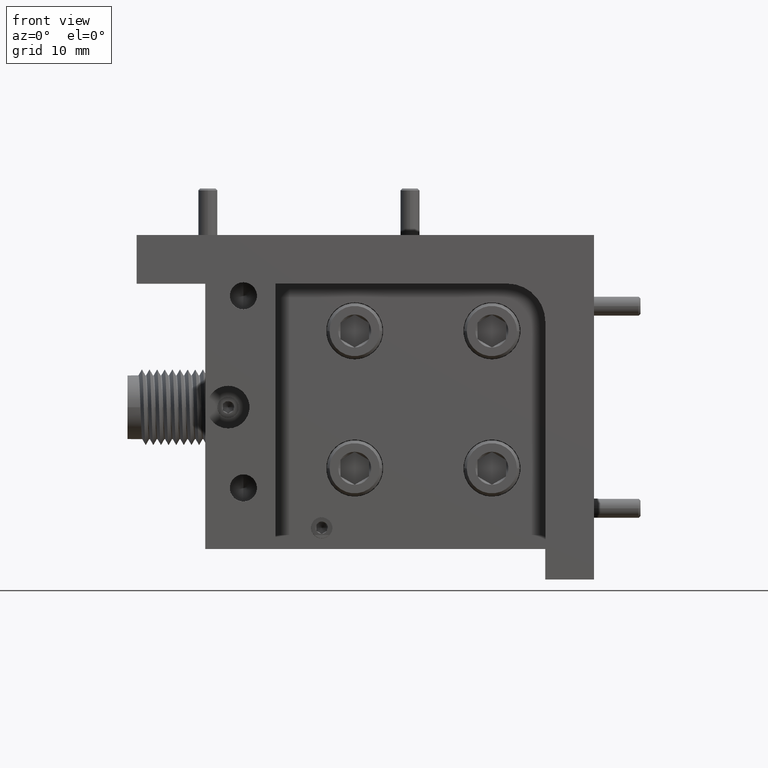
[diagram: clean part render]
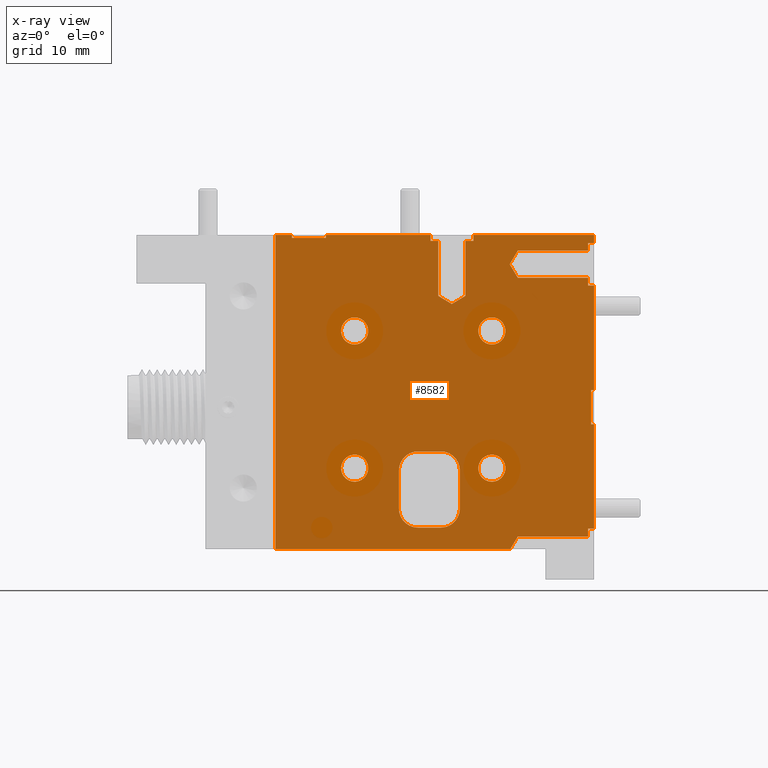
[diagram: x-ray — body ghosted, one internal face saturated and labeled with its STEP entity id]
A machine part, front view, then the same camera in x-ray: the body is ghosted and one INTERNAL B-rep face — a face not visible from any outside direction — is saturated and labeled: STEP entity #8582.
In plain terms, the highlighted planar face has unit normal (0, 1, -0).
Its self-contained STEP definition (entity closure, byte-faithful):
#28 = ORIENTED_EDGE ( 'NONE', *, *, #25538, .T. ) ;
#56 = EDGE_CURVE ( 'NONE', #23834, #22377, #21743, .T. ) ;
#151 = CARTESIAN_POINT ( 'NONE',  ( 0.7299999999999995400, 0.5649999999999999500, 0.5650000000000001700 ) ) ;
#199 = EDGE_CURVE ( 'NONE', #29773, #23316, #7146, .T. ) ;
#209 = EDGE_CURVE ( 'NONE', #19739, #19826, #17882, .T. ) ;
#213 = CARTESIAN_POINT ( 'NONE',  ( 0.7499999999999998900, 0.5649999999999999500, 0.5650000000000001700 ) ) ;
#232 = VERTEX_POINT ( 'NONE', #19087 ) ;
#254 = DIRECTION ( 'NONE',  ( -0.0000000000000000000, -1.000000000000000000, -0.0000000000000000000 ) ) ;
#397 = DIRECTION ( 'NONE',  ( 0.0000000000000000000, 0.0000000000000000000, -1.000000000000000000 ) ) ;
#596 = VECTOR ( 'NONE', #22093, 39.37007874015748100 ) ;
#700 = EDGE_CURVE ( 'NONE', #8427, #2411, #13617, .T. ) ;
#728 = CARTESIAN_POINT ( 'NONE',  ( 0.7299999999999995400, 0.5649999999999999500, 0.5387499999999997300 ) ) ;
#838 = VECTOR ( 'NONE', #3100, 39.37007874015748100 ) ;
#846 = CARTESIAN_POINT ( 'NONE',  ( 0.7499999999999998900, 0.5649999999999999500, 0.5650000000000001700 ) ) ;
#930 = LINE ( 'NONE', #29572, #28134 ) ;
#1063 = EDGE_LOOP ( 'NONE', ( #27345, #27094, #24034, #25707, #4909, #29517, #12427, #15848 ) ) ;
#1151 = ORIENTED_EDGE ( 'NONE', *, *, #14973, .F. ) ;
#1405 = CARTESIAN_POINT ( 'NONE',  ( -0.03500000000000012800, 0.5649999999999999500, 0.2944999999999999800 ) ) ;
#1422 = ORIENTED_EDGE ( 'NONE', *, *, #3636, .F. ) ;
#1443 = ORIENTED_EDGE ( 'NONE', *, *, #26437, .T. ) ;
#1518 = ORIENTED_EDGE ( 'NONE', *, *, #7972, .T. ) ;
#1781 = DIRECTION ( 'NONE',  ( 0.0000000000000000000, 0.0000000000000000000, -1.000000000000000000 ) ) ;
#1909 = CIRCLE ( 'NONE', #16889, 0.06250000000000005600 ) ;
#2118 = EDGE_LOOP ( 'NONE', ( #4166, #1422 ) ) ;
#2347 = VECTOR ( 'NONE', #12136, 39.37007874015748100 ) ;
#2411 = VERTEX_POINT ( 'NONE', #15401 ) ;
#2510 = DIRECTION ( 'NONE',  ( -1.000000000000000000, -0.0000000000000000000, 4.553079989440437700E-016 ) ) ;
#2630 = LINE ( 'NONE', #9233, #9558 ) ;
#2861 = ORIENTED_EDGE ( 'NONE', *, *, #22445, .T. ) ;
#2912 = CARTESIAN_POINT ( 'NONE',  ( -0.2410000000000006600, 0.5649999999999999500, 0.5650000000000001700 ) ) ;
#2981 = ORIENTED_EDGE ( 'NONE', *, *, #9999, .T. ) ;
#3023 = AXIS2_PLACEMENT_3D ( 'NONE', #10028, #254, #27025 ) ;
#3033 = ORIENTED_EDGE ( 'NONE', *, *, #14944, .F. ) ;
#3036 = CARTESIAN_POINT ( 'NONE',  ( 0.7299999999999995400, 0.5649999999999999500, 0.5387499999999997300 ) ) ;
#3069 = AXIS2_PLACEMENT_3D ( 'NONE', #18174, #3526, #23427 ) ;
#3100 = DIRECTION ( 'NONE',  ( 0.5150380749100550400, -3.366042420104637000E-017, 0.8571673007021117800 ) ) ;
#3165 = CARTESIAN_POINT ( 'NONE',  ( 0.7299999999999995400, 0.5649999999999999500, 0.5650000000000001700 ) ) ;
#3189 = CARTESIAN_POINT ( 'NONE',  ( 0.4755149297739927900, 0.5650000000000906500, -0.4649999999999999100 ) ) ;
#3241 = LINE ( 'NONE', #27762, #7468 ) ;
#3345 = DIRECTION ( 'NONE',  ( 1.000000000000000000, -6.535521515943214400E-017, -1.960656454782963900E-016 ) ) ;
#3371 = EDGE_CURVE ( 'NONE', #23396, #23316, #3974, .T. ) ;
#3468 = VERTEX_POINT ( 'NONE', #30446 ) ;
#3526 = DIRECTION ( 'NONE',  ( -6.535521515943215600E-017, -1.000000000000000000, 0.0000000000000000000 ) ) ;
#3572 = CARTESIAN_POINT ( 'NONE',  ( 0.7299999999999995400, 0.5649999999999999500, 0.4242500000000000200 ) ) ;
#3626 = VERTEX_POINT ( 'NONE', #31308 ) ;
#3636 = EDGE_CURVE ( 'NONE', #30985, #30448, #31512, .T. ) ;
#3688 = CARTESIAN_POINT ( 'NONE',  ( 0.4149999999999999200, 0.5649999999999999500, -0.2444999999999991900 ) ) ;
#3794 = VERTEX_POINT ( 'NONE', #10229 ) ;
#3901 = CARTESIAN_POINT ( 'NONE',  ( 0.2137499999999992500, 0.5649999999999999500, 0.5450000000000000400 ) ) ;
#3939 = CIRCLE ( 'NONE', #19445, 0.04449999999999955400 ) ;
#3959 = LINE ( 'NONE', #25359, #838 ) ;
#3974 = LINE ( 'NONE', #27355, #17342 ) ;
#4080 = ORIENTED_EDGE ( 'NONE', *, *, #18994, .T. ) ;
#4166 = ORIENTED_EDGE ( 'NONE', *, *, #26761, .F. ) ;
#4291 = FACE_BOUND ( 'NONE', #21644, .T. ) ;
#4419 = DIRECTION ( 'NONE',  ( -0.0000000000000000000, -0.0000000000000000000, -1.000000000000000000 ) ) ;
#4421 = CARTESIAN_POINT ( 'NONE',  ( 0.4149999999999999200, 0.5649999999999999500, 0.2500000000000003900 ) ) ;
#4556 = DIRECTION ( 'NONE',  ( -0.0000000000000000000, -1.000000000000000000, -0.0000000000000000000 ) ) ;
#4593 = VERTEX_POINT ( 'NONE', #24397 ) ;
#4758 = EDGE_CURVE ( 'NONE', #28155, #13393, #21516, .T. ) ;
#4808 = VECTOR ( 'NONE', #5241, 39.37007874015748100 ) ;
#4861 = EDGE_CURVE ( 'NONE', #3468, #5995, #6966, .T. ) ;
#4909 = ORIENTED_EDGE ( 'NONE', *, *, #24611, .F. ) ;
#4967 = DIRECTION ( 'NONE',  ( 1.000000000000000000, -0.0000000000000000000, -0.0000000000000000000 ) ) ;
#5064 = DIRECTION ( 'NONE',  ( -6.535521515943215600E-017, -1.000000000000000000, 0.0000000000000000000 ) ) ;
#5065 = LINE ( 'NONE', #14509, #2347 ) ;
#5241 = DIRECTION ( 'NONE',  ( 0.0000000000000000000, -1.190270089391939500E-032, -1.000000000000000000 ) ) ;
#5242 = LINE ( 'NONE', #10524, #23978 ) ;
#5271 = EDGE_CURVE ( 'NONE', #29848, #20117, #13024, .T. ) ;
#5374 = DIRECTION ( 'NONE',  ( -0.0000000000000000000, -1.000000000000000000, -0.0000000000000000000 ) ) ;
#5376 = CIRCLE ( 'NONE', #8502, 0.06250000000000005600 ) ;
#5403 = LINE ( 'NONE', #5887, #30632 ) ;
#5490 = CARTESIAN_POINT ( 'NONE',  ( 0.2137499999999992500, 0.5649999999999999500, 0.5450000000000000400 ) ) ;
#5665 = VERTEX_POINT ( 'NONE', #11240 ) ;
#5739 = VECTOR ( 'NONE', #22078, 39.37007874015748100 ) ;
#5803 = DIRECTION ( 'NONE',  ( 1.000000000000000000, -6.535521515943214400E-017, -1.960656454782963900E-016 ) ) ;
#5817 = CARTESIAN_POINT ( 'NONE',  ( 0.3100000000000000000, 0.5649999999999999500, -0.2074999999999999100 ) ) ;
#5887 = CARTESIAN_POINT ( 'NONE',  ( 0.2837499999999994500, 0.5649999999999999500, 0.3382617024532735300 ) ) ;
#5995 = VERTEX_POINT ( 'NONE', #19944 ) ;
#6091 = LINE ( 'NONE', #213, #21402 ) ;
#6119 = CARTESIAN_POINT ( 'NONE',  ( 0.1724999999999999000, 0.5649999999999999500, -0.3949999999999999600 ) ) ;
#6124 = DIRECTION ( 'NONE',  ( -0.0000000000000000000, -0.0000000000000000000, 1.000000000000000000 ) ) ;
#6173 = DIRECTION ( 'NONE',  ( 1.000000000000000000, 0.0000000000000000000, 0.0000000000000000000 ) ) ;
#6206 = DIRECTION ( 'NONE',  ( -1.000000000000000000, 6.535521515943215600E-017, 0.0000000000000000000 ) ) ;
#6314 = CARTESIAN_POINT ( 'NONE',  ( 0.7499999999999998900, 0.5649999999999999500, 0.5650000000000001700 ) ) ;
#6437 = CARTESIAN_POINT ( 'NONE',  ( 0.1724999999999999000, 0.5649999999999999500, -0.1449999999999998800 ) ) ;
#6444 = CARTESIAN_POINT ( 'NONE',  ( 0.4149999999999999200, 0.5649999999999999500, -0.1999999999999996500 ) ) ;
#6868 = EDGE_CURVE ( 'NONE', #3468, #23256, #26356, .T. ) ;
#6966 = LINE ( 'NONE', #16420, #19220 ) ;
#6977 = VECTOR ( 'NONE', #9855, 39.37007874015748100 ) ;
#7143 = ORIENTED_EDGE ( 'NONE', *, *, #16340, .T. ) ;
#7146 = LINE ( 'NONE', #14028, #25931 ) ;
#7192 = ORIENTED_EDGE ( 'NONE', *, *, #5271, .F. ) ;
#7207 = LINE ( 'NONE', #29059, #16746 ) ;
#7317 = ORIENTED_EDGE ( 'NONE', *, *, #26287, .F. ) ;
#7468 = VECTOR ( 'NONE', #8296, 39.37007874015748100 ) ;
#7694 = VECTOR ( 'NONE', #11939, 39.37007874015748100 ) ;
#7720 = FACE_OUTER_BOUND ( 'NONE', #26856, .T. ) ;
#7972 = EDGE_CURVE ( 'NONE', #17213, #28990, #22627, .T. ) ;
#8082 = CARTESIAN_POINT ( 'NONE',  ( 0.7499999999999997800, 0.5649999999999999500, -0.05599999999999982800 ) ) ;
#8089 = CARTESIAN_POINT ( 'NONE',  ( -0.03500000000000013500, 0.5649999999999999500, -0.2444999999999991900 ) ) ;
#8118 = DIRECTION ( 'NONE',  ( -0.8571673007021111100, 5.602035336501615100E-017, 0.5150380749100562600 ) ) ;
#8155 = DIRECTION ( 'NONE',  ( -0.0000000000000000000, -1.000000000000000000, -0.0000000000000000000 ) ) ;
#8243 = LINE ( 'NONE', #16142, #20904 ) ;
#8296 = DIRECTION ( 'NONE',  ( -0.5150380749100550400, 3.366042420104639500E-017, 0.8571673007021117800 ) ) ;
#8427 = VERTEX_POINT ( 'NONE', #17236 ) ;
#8449 = CARTESIAN_POINT ( 'NONE',  ( 0.7499999999999998900, 0.5649999999999999500, 0.5450000000000000400 ) ) ;
#8502 = AXIS2_PLACEMENT_3D ( 'NONE', #22324, #23147, #6173 ) ;
#8582 = ADVANCED_FACE ( 'NONE', ( #21124, #21503, #23023, #4291, #20735, #7720 ), #13747, .F. ) ;
#8704 = CARTESIAN_POINT ( 'NONE',  ( 0.4732617024532731500, 0.5649999999999999500, 0.4687499999999997200 ) ) ;
#8750 = ORIENTED_EDGE ( 'NONE', *, *, #15064, .F. ) ;
#8856 = DIRECTION ( 'NONE',  ( 1.000000000000000000, 0.0000000000000000000, 0.0000000000000000000 ) ) ;
#8954 = CARTESIAN_POINT ( 'NONE',  ( 0.7299999999999995400, 0.5649999999999999500, -0.3987500000000001600 ) ) ;
#8992 = ORIENTED_EDGE ( 'NONE', *, *, #12632, .T. ) ;
#9233 = CARTESIAN_POINT ( 'NONE',  ( 0.7499999999999997800, 0.5649999999999999500, 0.05599999999999982800 ) ) ;
#9275 = LINE ( 'NONE', #846, #17686 ) ;
#9372 = EDGE_CURVE ( 'NONE', #16630, #20123, #22991, .T. ) ;
#9558 = VECTOR ( 'NONE', #23791, 39.37007874015748100 ) ;
#9622 = VECTOR ( 'NONE', #12216, 39.37007874015748100 ) ;
#9855 = DIRECTION ( 'NONE',  ( 0.0000000000000000000, 0.0000000000000000000, -1.000000000000000000 ) ) ;
#9949 = EDGE_CURVE ( 'NONE', #2411, #28592, #1909, .T. ) ;
#9999 = EDGE_CURVE ( 'NONE', #15879, #23559, #5403, .T. ) ;
#10028 = CARTESIAN_POINT ( 'NONE',  ( -0.03500000000000013500, 0.5649999999999999500, 0.2500000000000003900 ) ) ;
#10229 = CARTESIAN_POINT ( 'NONE',  ( -0.2950000000000000400, 0.5649999999999999500, 0.5650000000000003900 ) ) ;
#10364 = EDGE_CURVE ( 'NONE', #27650, #20952, #5376, .T. ) ;
#10429 = AXIS2_PLACEMENT_3D ( 'NONE', #10499, #8155, #30187 ) ;
#10499 = CARTESIAN_POINT ( 'NONE',  ( 0.4149999999999999200, 0.5649999999999999500, -0.1999999999999996500 ) ) ;
#10512 = CARTESIAN_POINT ( 'NONE',  ( 0.4149999999999999200, 0.5649999999999999500, 0.2055000000000008500 ) ) ;
#10524 = CARTESIAN_POINT ( 'NONE',  ( 0.3100000000000000000, 0.5649999999999999500, -0.3324999999999998500 ) ) ;
#10579 = EDGE_CURVE ( 'NONE', #23413, #17609, #19117, .T. ) ;
#10773 = VECTOR ( 'NONE', #16159, 39.37007874015748100 ) ;
#10882 = EDGE_CURVE ( 'NONE', #23396, #13393, #6091, .T. ) ;
#10887 = DIRECTION ( 'NONE',  ( 1.000000000000000000, -6.535521515943215600E-017, 0.0000000000000000000 ) ) ;
#10962 = LINE ( 'NONE', #17025, #596 ) ;
#11027 = CARTESIAN_POINT ( 'NONE',  ( 0.7499999999999998900, 0.5649999999999999500, 0.5550000000000000500 ) ) ;
#11083 = ORIENTED_EDGE ( 'NONE', *, *, #209, .F. ) ;
#11207 = VECTOR ( 'NONE', #4967, 39.37007874015748100 ) ;
#11236 = DIRECTION ( 'NONE',  ( 0.0000000000000000000, 1.190270089391939500E-032, 1.000000000000000000 ) ) ;
#11240 = CARTESIAN_POINT ( 'NONE',  ( -0.2950000000000002100, 0.5649999999999999500, -0.4649999999999995200 ) ) ;
#11261 = VERTEX_POINT ( 'NONE', #5490 ) ;
#11415 = EDGE_CURVE ( 'NONE', #28592, #15230, #24451, .T. ) ;
#11474 = CARTESIAN_POINT ( 'NONE',  ( 0.2392499999999994600, 0.5649999999999999500, 0.3650000000000000500 ) ) ;
#11544 = CARTESIAN_POINT ( 'NONE',  ( -0.03500000000000013500, 0.5649999999999999500, 0.2055000000000008500 ) ) ;
#11592 = CARTESIAN_POINT ( 'NONE',  ( -0.03500000000000013500, 0.5649999999999999500, 0.2500000000000003900 ) ) ;
#11641 = DIRECTION ( 'NONE',  ( -1.821231995776175700E-016, -0.0000000000000000000, -1.000000000000000000 ) ) ;
#11728 = EDGE_CURVE ( 'NONE', #19826, #19739, #25565, .T. ) ;
#11939 = DIRECTION ( 'NONE',  ( -0.0000000000000000000, -0.0000000000000000000, 1.000000000000000000 ) ) ;
#11970 = LINE ( 'NONE', #27191, #11207 ) ;
#12017 = ORIENTED_EDGE ( 'NONE', *, *, #10579, .F. ) ;
#12066 = ORIENTED_EDGE ( 'NONE', *, *, #3371, .T. ) ;
#12092 = DIRECTION ( 'NONE',  ( -1.821231995776175700E-016, -0.0000000000000000000, -1.000000000000000000 ) ) ;
#12136 = DIRECTION ( 'NONE',  ( -1.821231995776175700E-016, -0.0000000000000000000, -1.000000000000000000 ) ) ;
#12216 = DIRECTION ( 'NONE',  ( -1.000000000000000000, 0.0000000000000000000, 0.0000000000000000000 ) ) ;
#12353 = CARTESIAN_POINT ( 'NONE',  ( 0.7499999999999998900, 0.5649999999999999500, 0.5450000000000000400 ) ) ;
#12375 = DIRECTION ( 'NONE',  ( 1.000000000000000000, 0.0000000000000000000, 0.0000000000000000000 ) ) ;
#12427 = ORIENTED_EDGE ( 'NONE', *, *, #13882, .F. ) ;
#12525 = CARTESIAN_POINT ( 'NONE',  ( 0.7499999999999996700, 0.5649999999999999500, 0.4242500000000000200 ) ) ;
#12632 = EDGE_CURVE ( 'NONE', #11261, #31357, #30898, .T. ) ;
#12665 = EDGE_CURVE ( 'NONE', #20873, #14398, #12883, .T. ) ;
#12800 = CARTESIAN_POINT ( 'NONE',  ( 0.4149999999999999200, 0.5649999999999999500, -0.1555000000000000800 ) ) ;
#12883 = LINE ( 'NONE', #19462, #25569 ) ;
#12913 = VECTOR ( 'NONE', #8856, 39.37007874015748100 ) ;
#13024 = CIRCLE ( 'NONE', #28882, 0.04449999999999955400 ) ;
#13078 = CARTESIAN_POINT ( 'NONE',  ( 0.7500000000000008900, 0.5649999999999999500, 0.05599999999999986200 ) ) ;
#13143 = DIRECTION ( 'NONE',  ( 1.000000000000000000, -6.535521515943215600E-017, 0.0000000000000000000 ) ) ;
#13186 = VECTOR ( 'NONE', #13143, 39.37007874015748100 ) ;
#13221 = EDGE_CURVE ( 'NONE', #15230, #3626, #24010, .T. ) ;
#13311 = VECTOR ( 'NONE', #12092, 39.37007874015748100 ) ;
#13331 = ORIENTED_EDGE ( 'NONE', *, *, #31114, .F. ) ;
#13363 = VERTEX_POINT ( 'NONE', #3189 ) ;
#13365 = CARTESIAN_POINT ( 'NONE',  ( 0.2837499999999994500, 0.5649999999999999500, 0.3382617024532735300 ) ) ;
#13393 = VERTEX_POINT ( 'NONE', #30040 ) ;
#13604 = ORIENTED_EDGE ( 'NONE', *, *, #199, .F. ) ;
#13617 = LINE ( 'NONE', #26337, #20564 ) ;
#13728 = LINE ( 'NONE', #19717, #5739 ) ;
#13747 = PLANE ( 'NONE',  #13971 ) ;
#13775 = ORIENTED_EDGE ( 'NONE', *, *, #26612, .F. ) ;
#13842 = DIRECTION ( 'NONE',  ( 0.0000000000000000000, 0.0000000000000000000, -1.000000000000000000 ) ) ;
#13855 = VECTOR ( 'NONE', #5803, 39.37007874015748100 ) ;
#13882 = EDGE_CURVE ( 'NONE', #3626, #27650, #5242, .T. ) ;
#13971 = AXIS2_PLACEMENT_3D ( 'NONE', #30877, #23408, #6206 ) ;
#14028 = CARTESIAN_POINT ( 'NONE',  ( 0.7400000000000008800, 0.5649999999999999500, 0.5650000000000001700 ) ) ;
#14296 = CARTESIAN_POINT ( 'NONE',  ( 0.1724999999999999300, 0.5649999999999999500, -0.3949999999999999600 ) ) ;
#14297 = CARTESIAN_POINT ( 'NONE',  ( 0.4732617024532731500, 0.5649999999999999500, -0.4687500000000002800 ) ) ;
#14322 = EDGE_CURVE ( 'NONE', #3794, #5665, #8243, .T. ) ;
#14333 = DIRECTION ( 'NONE',  ( -1.000000000000000000, 6.535521515943215600E-017, 0.0000000000000000000 ) ) ;
#14349 = DIRECTION ( 'NONE',  ( 0.0000000000000000000, 0.0000000000000000000, -1.000000000000000000 ) ) ;
#14398 = VERTEX_POINT ( 'NONE', #29114 ) ;
#14443 = VECTOR ( 'NONE', #24670, 39.37007874015748100 ) ;
#14457 = AXIS2_PLACEMENT_3D ( 'NONE', #27173, #5374, #397 ) ;
#14509 = CARTESIAN_POINT ( 'NONE',  ( 0.7499999999999998900, 0.5649999999999999500, 0.5650000000000001700 ) ) ;
#14583 = LINE ( 'NONE', #23955, #7694 ) ;
#14944 = EDGE_CURVE ( 'NONE', #23834, #29620, #26605, .T. ) ;
#14973 = EDGE_CURVE ( 'NONE', #11261, #26667, #30796, .T. ) ;
#14985 = DIRECTION ( 'NONE',  ( -1.821231995776175700E-016, -0.0000000000000000000, -1.000000000000000000 ) ) ;
#15064 = EDGE_CURVE ( 'NONE', #16630, #23563, #23942, .T. ) ;
#15179 = ORIENTED_EDGE ( 'NONE', *, *, #21576, .F. ) ;
#15182 = LINE ( 'NONE', #16995, #17053 ) ;
#15230 = VERTEX_POINT ( 'NONE', #19069 ) ;
#15232 = CARTESIAN_POINT ( 'NONE',  ( 0.7499999999999996700, 0.5649999999999999500, 0.3987499999999997200 ) ) ;
#15234 = DIRECTION ( 'NONE',  ( 0.0000000000000000000, 0.0000000000000000000, 1.000000000000000000 ) ) ;
#15370 = DIRECTION ( 'NONE',  ( -1.000000000000000000, 6.535521515943215600E-017, 1.804112415015879600E-016 ) ) ;
#15401 = CARTESIAN_POINT ( 'NONE',  ( 0.1099999999999999200, 0.5649999999999999500, -0.3324999999999998500 ) ) ;
#15578 = ORIENTED_EDGE ( 'NONE', *, *, #9372, .T. ) ;
#15677 = ORIENTED_EDGE ( 'NONE', *, *, #6868, .F. ) ;
#15848 = ORIENTED_EDGE ( 'NONE', *, *, #13221, .F. ) ;
#15879 = VERTEX_POINT ( 'NONE', #13365 ) ;
#16050 = ORIENTED_EDGE ( 'NONE', *, *, #4758, .T. ) ;
#16056 = CIRCLE ( 'NONE', #18206, 0.04449999999999955400 ) ;
#16142 = CARTESIAN_POINT ( 'NONE',  ( -0.2950000000000000400, 0.5649999999999999500, 0.5650000000000003900 ) ) ;
#16159 = DIRECTION ( 'NONE',  ( 1.000000000000000000, -0.0000000000000000000, -0.0000000000000000000 ) ) ;
#16192 = EDGE_CURVE ( 'NONE', #30789, #29620, #11970, .T. ) ;
#16340 = EDGE_CURVE ( 'NONE', #17602, #30789, #3959, .T. ) ;
#16380 = VECTOR ( 'NONE', #10887, 39.37007874015748100 ) ;
#16420 = CARTESIAN_POINT ( 'NONE',  ( 0.3282499999999991500, 0.5649999999999999500, 0.5650000000000000600 ) ) ;
#16439 = CIRCLE ( 'NONE', #25431, 0.04449999999999955400 ) ;
#16449 = ORIENTED_EDGE ( 'NONE', *, *, #24560, .T. ) ;
#16630 = VERTEX_POINT ( 'NONE', #3572 ) ;
#16698 = CARTESIAN_POINT ( 'NONE',  ( -0.03500000000000013500, 0.5649999999999999500, -0.1999999999999996500 ) ) ;
#16746 = VECTOR ( 'NONE', #26404, 39.37007874015748100 ) ;
#16889 = AXIS2_PLACEMENT_3D ( 'NONE', #17321, #5064, #12375 ) ;
#16942 = DIRECTION ( 'NONE',  ( 1.000000000000000000, -6.535521515943214400E-017, -1.960656454782963900E-016 ) ) ;
#16995 = CARTESIAN_POINT ( 'NONE',  ( -0.5250000000000002400, 0.5649999999999999500, -0.4649999999999999100 ) ) ;
#17025 = CARTESIAN_POINT ( 'NONE',  ( 0.7299999999999995400, 0.5649999999999999500, 0.5650000000000001700 ) ) ;
#17053 = VECTOR ( 'NONE', #14333, 39.37007874015748100 ) ;
#17213 = VERTEX_POINT ( 'NONE', #21205 ) ;
#17236 = CARTESIAN_POINT ( 'NONE',  ( 0.1099999999999999200, 0.5649999999999999500, -0.2074999999999999100 ) ) ;
#17280 = CIRCLE ( 'NONE', #3069, 0.06250000000000001400 ) ;
#17296 = DIRECTION ( 'NONE',  ( 1.000000000000000000, -6.535521515943215600E-017, 0.0000000000000000000 ) ) ;
#17308 = LINE ( 'NONE', #17750, #13855 ) ;
#17321 = CARTESIAN_POINT ( 'NONE',  ( 0.1724999999999999000, 0.5649999999999999500, -0.3324999999999998500 ) ) ;
#17342 = VECTOR ( 'NONE', #15370, 39.37007874015748100 ) ;
#17408 = AXIS2_PLACEMENT_3D ( 'NONE', #16698, #4556, #14349 ) ;
#17425 = DIRECTION ( 'NONE',  ( -6.535521515943215600E-017, -1.000000000000000000, 0.0000000000000000000 ) ) ;
#17501 = EDGE_LOOP ( 'NONE', ( #18990, #11083 ) ) ;
#17522 = VECTOR ( 'NONE', #6124, 39.37007874015748100 ) ;
#17602 = VERTEX_POINT ( 'NONE', #8704 ) ;
#17609 = VERTEX_POINT ( 'NONE', #13078 ) ;
#17686 = VECTOR ( 'NONE', #3345, 39.37007874015748100 ) ;
#17750 = CARTESIAN_POINT ( 'NONE',  ( 0.7499999999999998900, 0.5649999999999999500, 0.5650000000000001700 ) ) ;
#17882 = CIRCLE ( 'NONE', #17408, 0.04449999999999955400 ) ;
#17953 = EDGE_CURVE ( 'NONE', #20117, #29848, #24251, .T. ) ;
#18038 = CARTESIAN_POINT ( 'NONE',  ( 0.4999999999999996700, 0.5649999999999999500, 0.5132499999999997600 ) ) ;
#18174 = CARTESIAN_POINT ( 'NONE',  ( 0.1724999999999999000, 0.5649999999999999500, -0.2074999999999999100 ) ) ;
#18206 = AXIS2_PLACEMENT_3D ( 'NONE', #4421, #28795, #31367 ) ;
#18311 = AXIS2_PLACEMENT_3D ( 'NONE', #25041, #17425, #29733 ) ;
#18559 = CARTESIAN_POINT ( 'NONE',  ( 0.7400000000000008800, 0.5649999999999999500, 0.05599999999999986200 ) ) ;
#18990 = ORIENTED_EDGE ( 'NONE', *, *, #11728, .F. ) ;
#18994 = EDGE_CURVE ( 'NONE', #5995, #15879, #26494, .T. ) ;
#18996 = CARTESIAN_POINT ( 'NONE',  ( 0.2837499999999994500, 0.5649999999999999500, 0.3382617024532735300 ) ) ;
#19069 = CARTESIAN_POINT ( 'NONE',  ( 0.2474999999999999100, 0.5649999999999999500, -0.3949999999999999600 ) ) ;
#19087 = CARTESIAN_POINT ( 'NONE',  ( 0.4149999999999999200, 0.5649999999999999500, 0.2944999999999999800 ) ) ;
#19117 = LINE ( 'NONE', #24441, #13311 ) ;
#19220 = VECTOR ( 'NONE', #21052, 39.37007874015748100 ) ;
#19445 = AXIS2_PLACEMENT_3D ( 'NONE', #11592, #31192, #13842 ) ;
#19462 = CARTESIAN_POINT ( 'NONE',  ( 0.7499999999999996700, 0.5649999999999999500, -0.4242500000000005200 ) ) ;
#19596 = EDGE_CURVE ( 'NONE', #21044, #22377, #5065, .T. ) ;
#19717 = CARTESIAN_POINT ( 'NONE',  ( -0.1290000000000007300, 0.5649999999999999500, 0.5650000000000001700 ) ) ;
#19739 = VERTEX_POINT ( 'NONE', #27138 ) ;
#19826 = VERTEX_POINT ( 'NONE', #8089 ) ;
#19829 = CARTESIAN_POINT ( 'NONE',  ( 0.7499999999999996700, 0.5649999999999999500, 0.5387499999999997300 ) ) ;
#19944 = CARTESIAN_POINT ( 'NONE',  ( 0.3282499999999994300, 0.5649999999999999500, 0.3650000000000000500 ) ) ;
#20117 = VERTEX_POINT ( 'NONE', #12800 ) ;
#20123 = VERTEX_POINT ( 'NONE', #29743 ) ;
#20130 = ORIENTED_EDGE ( 'NONE', *, *, #28675, .F. ) ;
#20198 = CARTESIAN_POINT ( 'NONE',  ( 0.7299999999999995400, 0.5649999999999999500, 0.5132499999999995400 ) ) ;
#20233 = ORIENTED_EDGE ( 'NONE', *, *, #4861, .T. ) ;
#20257 = ORIENTED_EDGE ( 'NONE', *, *, #27874, .T. ) ;
#20564 = VECTOR ( 'NONE', #4419, 39.37007874015748100 ) ;
#20721 = ORIENTED_EDGE ( 'NONE', *, *, #56, .T. ) ;
#20735 = FACE_BOUND ( 'NONE', #1063, .T. ) ;
#20873 = VERTEX_POINT ( 'NONE', #27285 ) ;
#20904 = VECTOR ( 'NONE', #11641, 39.37007874015748100 ) ;
#20952 = VERTEX_POINT ( 'NONE', #25256 ) ;
#21044 = VERTEX_POINT ( 'NONE', #6314 ) ;
#21052 = DIRECTION ( 'NONE',  ( 0.0000000000000000000, 0.0000000000000000000, -1.000000000000000000 ) ) ;
#21124 = FACE_BOUND ( 'NONE', #2118, .T. ) ;
#21205 = CARTESIAN_POINT ( 'NONE',  ( -0.2410000000000006900, 0.5649999999999999500, 0.5550000000000000500 ) ) ;
#21402 = VECTOR ( 'NONE', #14985, 39.37007874015748100 ) ;
#21493 = CARTESIAN_POINT ( 'NONE',  ( 0.1724999999999999000, 0.5649999999999999500, -0.1449999999999998800 ) ) ;
#21503 = FACE_BOUND ( 'NONE', #29332, .T. ) ;
#21516 = LINE ( 'NONE', #30529, #10773 ) ;
#21576 = EDGE_CURVE ( 'NONE', #27013, #232, #16056, .T. ) ;
#21644 = EDGE_LOOP ( 'NONE', ( #7192, #30038 ) ) ;
#21647 = DIRECTION ( 'NONE',  ( 0.0000000000000000000, -1.190270089391939500E-032, -1.000000000000000000 ) ) ;
#21743 = LINE ( 'NONE', #3036, #14443 ) ;
#22078 = DIRECTION ( 'NONE',  ( 0.0000000000000000000, -1.190270089391939500E-032, -1.000000000000000000 ) ) ;
#22093 = DIRECTION ( 'NONE',  ( 0.0000000000000000000, -1.190270089391939500E-032, -1.000000000000000000 ) ) ;
#22233 = DIRECTION ( 'NONE',  ( -0.0000000000000000000, -1.000000000000000000, -0.0000000000000000000 ) ) ;
#22263 = VERTEX_POINT ( 'NONE', #28266 ) ;
#22316 = EDGE_CURVE ( 'NONE', #29773, #17609, #2630, .T. ) ;
#22324 = CARTESIAN_POINT ( 'NONE',  ( 0.2474999999999999100, 0.5649999999999999500, -0.2074999999999999100 ) ) ;
#22377 = VERTEX_POINT ( 'NONE', #19829 ) ;
#22414 = ORIENTED_EDGE ( 'NONE', *, *, #19596, .F. ) ;
#22423 = CARTESIAN_POINT ( 'NONE',  ( 0.7400000000000008800, 0.5649999999999999500, -0.05600000000000014000 ) ) ;
#22445 = EDGE_CURVE ( 'NONE', #22263, #24096, #13728, .T. ) ;
#22478 = CARTESIAN_POINT ( 'NONE',  ( 0.3537499999999996200, 0.5649999999999999500, 0.5450000000000000400 ) ) ;
#22627 = LINE ( 'NONE', #2912, #25253 ) ;
#22654 = CARTESIAN_POINT ( 'NONE',  ( 0.4149999999999999200, 0.5649999999999999500, 0.2500000000000003900 ) ) ;
#22991 = LINE ( 'NONE', #12525, #9622 ) ;
#23023 = FACE_BOUND ( 'NONE', #17501, .T. ) ;
#23044 = VECTOR ( 'NONE', #26161, 39.37007874015748900 ) ;
#23132 = EDGE_CURVE ( 'NONE', #23413, #23563, #7207, .T. ) ;
#23147 = DIRECTION ( 'NONE',  ( -6.535521515943215600E-017, -1.000000000000000000, 0.0000000000000000000 ) ) ;
#23256 = VERTEX_POINT ( 'NONE', #29584 ) ;
#23316 = VERTEX_POINT ( 'NONE', #22423 ) ;
#23396 = VERTEX_POINT ( 'NONE', #8082 ) ;
#23408 = DIRECTION ( 'NONE',  ( 6.535521515943215600E-017, 1.000000000000000000, -1.190270089391939500E-032 ) ) ;
#23413 = VERTEX_POINT ( 'NONE', #15232 ) ;
#23427 = DIRECTION ( 'NONE',  ( 1.000000000000000000, 0.0000000000000000000, 0.0000000000000000000 ) ) ;
#23559 = VERTEX_POINT ( 'NONE', #11474 ) ;
#23563 = VERTEX_POINT ( 'NONE', #28598 ) ;
#23751 = DIRECTION ( 'NONE',  ( -0.0000000000000000000, -1.000000000000000000, -0.0000000000000000000 ) ) ;
#23791 = DIRECTION ( 'NONE',  ( 1.000000000000000000, -6.535521515943215600E-017, -1.804112415015879600E-016 ) ) ;
#23834 = VERTEX_POINT ( 'NONE', #728 ) ;
#23938 = ORIENTED_EDGE ( 'NONE', *, *, #14322, .T. ) ;
#23942 = LINE ( 'NONE', #3165, #27334 ) ;
#23955 = CARTESIAN_POINT ( 'NONE',  ( 0.2392499999999996900, 0.5649999999999999500, 0.5650000000000000600 ) ) ;
#23978 = VECTOR ( 'NONE', #15234, 39.37007874015748100 ) ;
#24010 = CIRCLE ( 'NONE', #18311, 0.06250000000000005600 ) ;
#24034 = ORIENTED_EDGE ( 'NONE', *, *, #700, .F. ) ;
#24096 = VERTEX_POINT ( 'NONE', #31457 ) ;
#24134 = ORIENTED_EDGE ( 'NONE', *, *, #27078, .F. ) ;
#24189 = CARTESIAN_POINT ( 'NONE',  ( -0.2410000000000006900, 0.5649999999999999500, 0.5650000000000000600 ) ) ;
#24251 = CIRCLE ( 'NONE', #10429, 0.04449999999999955400 ) ;
#24311 = VECTOR ( 'NONE', #17296, 39.37007874015748100 ) ;
#24348 = LINE ( 'NONE', #14297, #31623 ) ;
#24397 = CARTESIAN_POINT ( 'NONE',  ( 0.3537499999999996200, 0.5649999999999999500, 0.5650000000000000600 ) ) ;
#24441 = CARTESIAN_POINT ( 'NONE',  ( 0.7499999999999998900, 0.5649999999999999500, 0.5650000000000001700 ) ) ;
#24451 = LINE ( 'NONE', #6119, #12913 ) ;
#24560 = EDGE_CURVE ( 'NONE', #13363, #20873, #24348, .T. ) ;
#24611 = EDGE_CURVE ( 'NONE', #20952, #27783, #30471, .T. ) ;
#24670 = DIRECTION ( 'NONE',  ( 1.000000000000000000, -0.0000000000000000000, -0.0000000000000000000 ) ) ;
#25041 = CARTESIAN_POINT ( 'NONE',  ( 0.2474999999999999100, 0.5649999999999999500, -0.3324999999999998500 ) ) ;
#25151 = ORIENTED_EDGE ( 'NONE', *, *, #16192, .T. ) ;
#25217 = EDGE_CURVE ( 'NONE', #3794, #28990, #930, .T. ) ;
#25253 = VECTOR ( 'NONE', #11236, 39.37007874015748100 ) ;
#25256 = CARTESIAN_POINT ( 'NONE',  ( 0.2474999999999999100, 0.5649999999999999500, -0.1449999999999999100 ) ) ;
#25359 = CARTESIAN_POINT ( 'NONE',  ( 0.4732617024532731500, 0.5649999999999999500, 0.4687499999999997200 ) ) ;
#25401 = EDGE_CURVE ( 'NONE', #17213, #24096, #26249, .T. ) ;
#25431 = AXIS2_PLACEMENT_3D ( 'NONE', #22654, #22233, #27331 ) ;
#25475 = ORIENTED_EDGE ( 'NONE', *, *, #22316, .T. ) ;
#25538 = EDGE_CURVE ( 'NONE', #20123, #17602, #3241, .T. ) ;
#25565 = CIRCLE ( 'NONE', #14457, 0.04449999999999955400 ) ;
#25569 = VECTOR ( 'NONE', #29180, 39.37007874015748100 ) ;
#25707 = ORIENTED_EDGE ( 'NONE', *, *, #27733, .F. ) ;
#25931 = VECTOR ( 'NONE', #21647, 39.37007874015748100 ) ;
#26161 = DIRECTION ( 'NONE',  ( -0.8571673007021111100, 5.602035336501615100E-017, -0.5150380749100562600 ) ) ;
#26249 = LINE ( 'NONE', #11027, #13186 ) ;
#26287 = EDGE_CURVE ( 'NONE', #13363, #5665, #15182, .T. ) ;
#26295 = DIRECTION ( 'NONE',  ( 0.5150380749100550400, -3.366042420104637000E-017, 0.8571673007021117800 ) ) ;
#26337 = CARTESIAN_POINT ( 'NONE',  ( 0.1099999999999999200, 0.5649999999999999500, -0.3324999999999998500 ) ) ;
#26356 = LINE ( 'NONE', #8449, #16380 ) ;
#26404 = DIRECTION ( 'NONE',  ( -1.000000000000000000, 0.0000000000000000000, 0.0000000000000000000 ) ) ;
#26430 = ORIENTED_EDGE ( 'NONE', *, *, #25217, .F. ) ;
#26437 = EDGE_CURVE ( 'NONE', #4593, #23256, #31216, .T. ) ;
#26494 = LINE ( 'NONE', #18996, #23044 ) ;
#26605 = LINE ( 'NONE', #151, #4808 ) ;
#26612 = EDGE_CURVE ( 'NONE', #22263, #31357, #17308, .T. ) ;
#26649 = VECTOR ( 'NONE', #2510, 39.37007874015748100 ) ;
#26667 = VERTEX_POINT ( 'NONE', #31303 ) ;
#26761 = EDGE_CURVE ( 'NONE', #30448, #30985, #3939, .T. ) ;
#26856 = EDGE_LOOP ( 'NONE', ( #13604, #25475, #12017, #27380, #8750, #15578, #28, #7143, #25151, #3033, #20721, #22414, #24134, #1443, #15677, #20233, #4080, #2981, #20257, #1151, #8992, #13775, #2861, #31755, #1518, #26430, #23938, #7317, #16449, #29019, #13331, #16050, #27557, #12066 ) ) ;
#27013 = VERTEX_POINT ( 'NONE', #10512 ) ;
#27025 = DIRECTION ( 'NONE',  ( 0.0000000000000000000, 0.0000000000000000000, -1.000000000000000000 ) ) ;
#27078 = EDGE_CURVE ( 'NONE', #4593, #21044, #9275, .T. ) ;
#27094 = ORIENTED_EDGE ( 'NONE', *, *, #9949, .F. ) ;
#27138 = CARTESIAN_POINT ( 'NONE',  ( -0.03500000000000012800, 0.5649999999999999500, -0.1555000000000000800 ) ) ;
#27173 = CARTESIAN_POINT ( 'NONE',  ( -0.03500000000000013500, 0.5649999999999999500, -0.1999999999999996500 ) ) ;
#27191 = CARTESIAN_POINT ( 'NONE',  ( 0.7499999999999996700, 0.5649999999999999500, 0.5132499999999995400 ) ) ;
#27285 = CARTESIAN_POINT ( 'NONE',  ( 0.4999999999999996700, 0.5649999999999999500, -0.4242500000000003500 ) ) ;
#27331 = DIRECTION ( 'NONE',  ( 0.0000000000000000000, 0.0000000000000000000, -1.000000000000000000 ) ) ;
#27334 = VECTOR ( 'NONE', #27763, 39.37007874015748100 ) ;
#27345 = ORIENTED_EDGE ( 'NONE', *, *, #11415, .F. ) ;
#27355 = CARTESIAN_POINT ( 'NONE',  ( 0.7499999999999997800, 0.5649999999999999500, -0.05600000000000009800 ) ) ;
#27380 = ORIENTED_EDGE ( 'NONE', *, *, #23132, .T. ) ;
#27511 = CARTESIAN_POINT ( 'NONE',  ( 0.2137499999999992500, 0.5649999999999999500, 0.5650000000000000600 ) ) ;
#27557 = ORIENTED_EDGE ( 'NONE', *, *, #10882, .F. ) ;
#27650 = VERTEX_POINT ( 'NONE', #5817 ) ;
#27733 = EDGE_CURVE ( 'NONE', #27783, #8427, #17280, .T. ) ;
#27762 = CARTESIAN_POINT ( 'NONE',  ( 0.4732617024532731500, 0.5649999999999999500, 0.4687499999999997200 ) ) ;
#27763 = DIRECTION ( 'NONE',  ( 0.0000000000000000000, -1.190270089391939500E-032, -1.000000000000000000 ) ) ;
#27783 = VERTEX_POINT ( 'NONE', #6437 ) ;
#27874 = EDGE_CURVE ( 'NONE', #23559, #26667, #14583, .T. ) ;
#28134 = VECTOR ( 'NONE', #16942, 39.37007874015748100 ) ;
#28155 = VERTEX_POINT ( 'NONE', #8954 ) ;
#28266 = CARTESIAN_POINT ( 'NONE',  ( -0.1290000000000007300, 0.5649999999999999500, 0.5650000000000003900 ) ) ;
#28592 = VERTEX_POINT ( 'NONE', #14296 ) ;
#28598 = CARTESIAN_POINT ( 'NONE',  ( 0.7299999999999995400, 0.5649999999999999500, 0.3987499999999997200 ) ) ;
#28675 = EDGE_CURVE ( 'NONE', #232, #27013, #16439, .T. ) ;
#28795 = DIRECTION ( 'NONE',  ( -0.0000000000000000000, -1.000000000000000000, -0.0000000000000000000 ) ) ;
#28882 = AXIS2_PLACEMENT_3D ( 'NONE', #6444, #23751, #1781 ) ;
#28990 = VERTEX_POINT ( 'NONE', #24189 ) ;
#29019 = ORIENTED_EDGE ( 'NONE', *, *, #12665, .T. ) ;
#29059 = CARTESIAN_POINT ( 'NONE',  ( 0.7299999999999995400, 0.5649999999999999500, 0.3987499999999997200 ) ) ;
#29114 = CARTESIAN_POINT ( 'NONE',  ( 0.7299999999999995400, 0.5649999999999999500, -0.4242500000000005200 ) ) ;
#29180 = DIRECTION ( 'NONE',  ( 1.000000000000000000, -0.0000000000000000000, -0.0000000000000000000 ) ) ;
#29332 = EDGE_LOOP ( 'NONE', ( #15179, #20130 ) ) ;
#29517 = ORIENTED_EDGE ( 'NONE', *, *, #10364, .F. ) ;
#29572 = CARTESIAN_POINT ( 'NONE',  ( 0.7499999999999998900, 0.5649999999999999500, 0.5650000000000001700 ) ) ;
#29584 = CARTESIAN_POINT ( 'NONE',  ( 0.3537499999999996200, 0.5649999999999999500, 0.5450000000000000400 ) ) ;
#29620 = VERTEX_POINT ( 'NONE', #20198 ) ;
#29733 = DIRECTION ( 'NONE',  ( -1.000000000000000000, 0.0000000000000000000, 0.0000000000000000000 ) ) ;
#29743 = CARTESIAN_POINT ( 'NONE',  ( 0.4999999999999996700, 0.5649999999999999500, 0.4242499999999997400 ) ) ;
#29773 = VERTEX_POINT ( 'NONE', #18559 ) ;
#29848 = VERTEX_POINT ( 'NONE', #3688 ) ;
#30038 = ORIENTED_EDGE ( 'NONE', *, *, #17953, .F. ) ;
#30040 = CARTESIAN_POINT ( 'NONE',  ( 0.7499999999999996700, 0.5649999999999999500, -0.3987500000000001600 ) ) ;
#30187 = DIRECTION ( 'NONE',  ( 0.0000000000000000000, 0.0000000000000000000, -1.000000000000000000 ) ) ;
#30446 = CARTESIAN_POINT ( 'NONE',  ( 0.3282499999999991500, 0.5649999999999999500, 0.5450000000000000400 ) ) ;
#30448 = VERTEX_POINT ( 'NONE', #11544 ) ;
#30471 = LINE ( 'NONE', #21493, #26649 ) ;
#30529 = CARTESIAN_POINT ( 'NONE',  ( 0.7299999999999995400, 0.5649999999999999500, -0.3987500000000001600 ) ) ;
#30632 = VECTOR ( 'NONE', #8118, 39.37007874015748900 ) ;
#30789 = VERTEX_POINT ( 'NONE', #18038 ) ;
#30796 = LINE ( 'NONE', #12353, #24311 ) ;
#30877 = CARTESIAN_POINT ( 'NONE',  ( 0.7499999999999998900, 0.5649999999999999500, 0.5650000000000001700 ) ) ;
#30898 = LINE ( 'NONE', #3901, #17522 ) ;
#30985 = VERTEX_POINT ( 'NONE', #1405 ) ;
#31114 = EDGE_CURVE ( 'NONE', #28155, #14398, #10962, .T. ) ;
#31192 = DIRECTION ( 'NONE',  ( -0.0000000000000000000, -1.000000000000000000, -0.0000000000000000000 ) ) ;
#31216 = LINE ( 'NONE', #22478, #6977 ) ;
#31303 = CARTESIAN_POINT ( 'NONE',  ( 0.2392499999999996900, 0.5649999999999999500, 0.5450000000000000400 ) ) ;
#31308 = CARTESIAN_POINT ( 'NONE',  ( 0.3100000000000000000, 0.5649999999999999500, -0.3324999999999998500 ) ) ;
#31357 = VERTEX_POINT ( 'NONE', #27511 ) ;
#31367 = DIRECTION ( 'NONE',  ( 0.0000000000000000000, 0.0000000000000000000, -1.000000000000000000 ) ) ;
#31457 = CARTESIAN_POINT ( 'NONE',  ( -0.1290000000000007000, 0.5649999999999999500, 0.5550000000000000500 ) ) ;
#31512 = CIRCLE ( 'NONE', #3023, 0.04449999999999955400 ) ;
#31623 = VECTOR ( 'NONE', #26295, 39.37007874015748100 ) ;
#31755 = ORIENTED_EDGE ( 'NONE', *, *, #25401, .F. ) ;